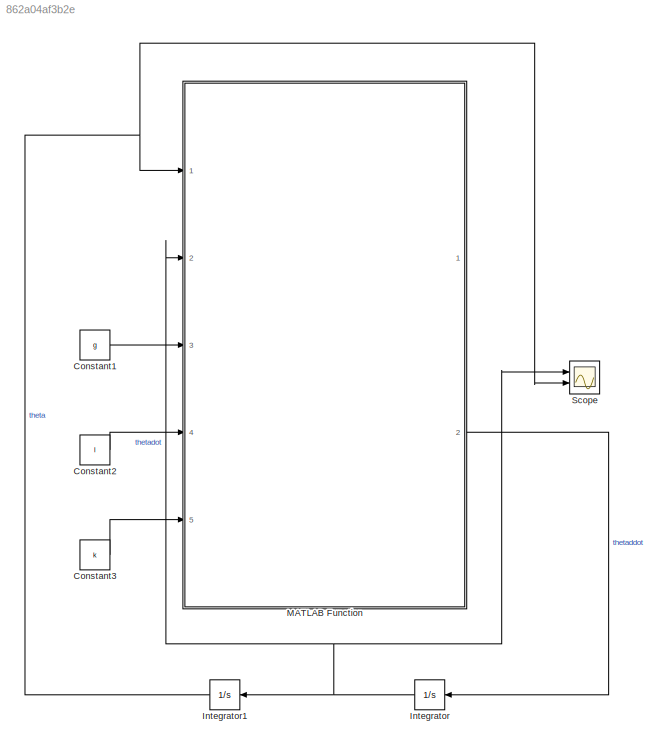
MODEL slx_862a04af3b2e
KIND model
CONFIG AbsTol = auto
CONFIG EnableMultiTasking = off
CONFIG FixedStep = auto
CONFIG MaxStep = auto
CONFIG MinStep = auto
CONFIG RelTol = 1e-3
CONFIG SampleTimeConstraint = Unconstrained
CONFIG SolverName = VariableStepAuto
CONFIG StartTime = 0.0
CONFIG StopTime = 10.0
BLOCK [Constant] Constant1
  Value = g
BLOCK [Constant] Constant2
  Value = l
BLOCK [Constant] Constant3
  Value = k
BLOCK [Integrator] Integrator
  InitialCondition = S0(2)
  Ports = [1, 1]
BLOCK [Integrator] Integrator1
  InitialCondition = S0(1)
  Ports = [1, 1]
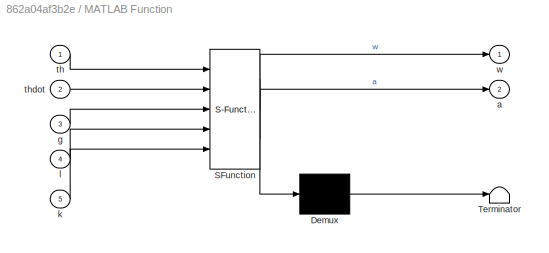
BLOCK [SubSystem] MATLAB Function
  ErrorFcn = Stateflow.Translate.translate
  PermitHierarchicalResolution = ExplicitOnly
  Ports = [5, 2]
  RequestExecContextInheritance = off
  SFBlockType = MATLAB Function
  TreatAsAtomicUnit = on
BLOCK [Demux] MATLAB Function/ Demux 
  Outputs = 1
  Ports = [1, 1]
BLOCK [S-Function] MATLAB Function/ SFunction 
  EnableBusSupport = on
  FunctionName = sf_sfun
  PortCounts = [5 3]
  Ports = [5, 3]
  SFcnIsStateOwnerBlock = off
  SFunctionDeploymentMode = off
  Tag = Stateflow S-Function 2
BLOCK [Terminator] MATLAB Function/ Terminator 
BLOCK [Outport] MATLAB Function/a
  Port = 2
BLOCK [Inport] MATLAB Function/g
  Port = 3
BLOCK [Inport] MATLAB Function/k
  Port = 5
BLOCK [Inport] MATLAB Function/l
  Port = 4
BLOCK [Inport] MATLAB Function/th
BLOCK [Inport] MATLAB Function/thdot
  Port = 2
BLOCK [Outport] MATLAB Function/w
BLOCK [Scope] Scope
  Floating = off
  NumInputPorts = 2
  Ports = [2]
  ScopeSpecificationString = Simulink.scopes.TimeScopeBlockCfg('CurrentConfiguration', extmgr.ConfigurationSet(extmgr.Configuration('Core','General UI',true),extmgr.Configuration('Core','Source UI',true),extmgr.Configuration('Sources','WiredSimulink',true),extmgr.Configuration('Visuals','Time Domain',true,'SerializedDisplays',{struct('MinYLimReal','-5.82773','MaxYLimReal','5.21','YLabelReal','','MinYLimMag','0.00000','MaxYLim...<+1931ch>
LINE Constant1:1 -> MATLAB Function:3
LINE Constant2:1 -> MATLAB Function:4
LINE Constant3:1 -> MATLAB Function:5
NET Integrator1:1 -> MATLAB Function:1, Scope:2
NET Integrator:1 -> Integrator1:1, MATLAB Function:2, Scope:1
LINE MATLAB Function:2 -> Integrator:1
note: NET lines group one-source signal fan-out (src -> all destinations, sorted); 1:1 wires keep LINE
CHART MATLAB Function states=1 transitions=1
  STATE_LABEL 'eML_blk_kernel()'
  STATE_LABEL 'SCRIPT:\n\nfunction [w,a] = sp_ODE(th,thdot,g,l,k)\n\nw = thdot;\na = -(g/l)*sin(th - 3*pi/2) - k*thdot;\n\nend\n\n\n\n'
CHART  states=0 transitions=0
